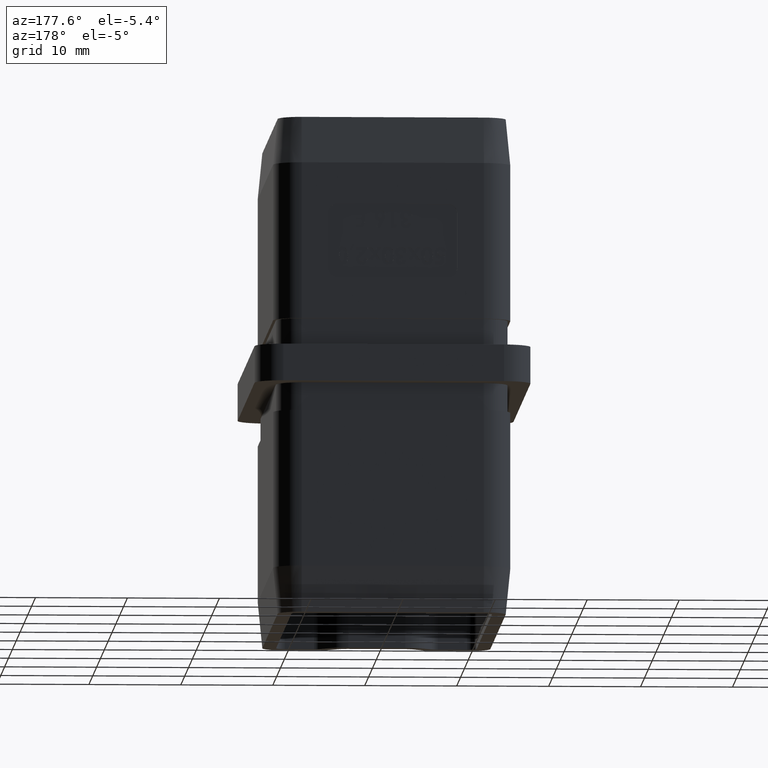
[diagram: clean part render]
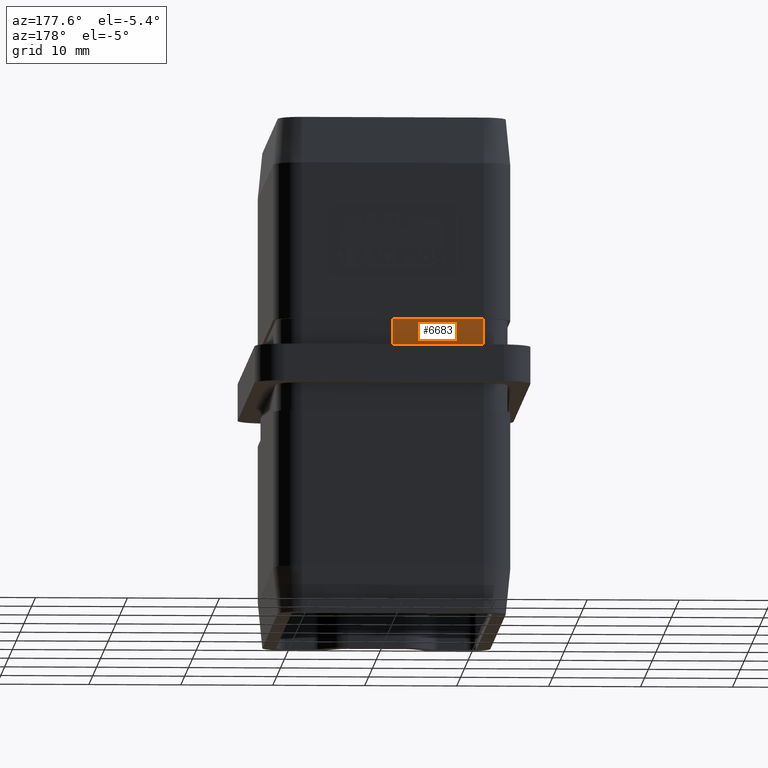
[diagram: same view with one face highlighted and labeled with its STEP entity id]
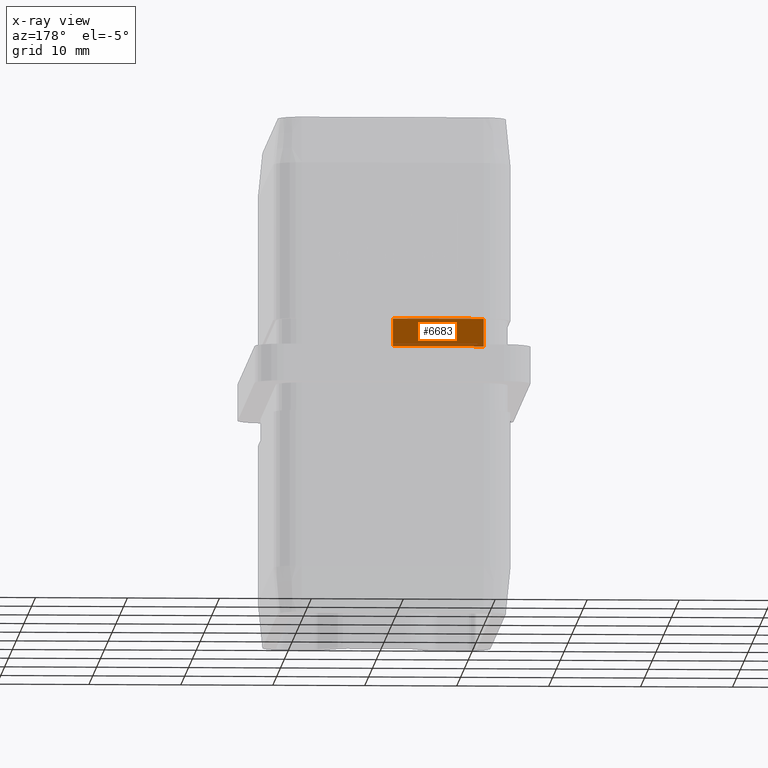
[diagram: x-ray of the same camera — body ghosted, the highlighted face saturated]
A machine part, auxiliary view. The second image highlights one B-rep face of the part: STEP entity #6683.
The next image is the same camera in x-ray: the body ghosted, the highlighted face saturated — about 0% of this face is hidden behind the body in this view.
In plain terms, the highlighted planar face has unit normal (0, -1, 0).
Its self-contained STEP definition (entity closure, byte-faithful):
#137 = FACE_OUTER_BOUND ( 'NONE', #10841, .T. ) ;
#208 = EDGE_CURVE ( 'NONE', #20409, #3533, #11685, .T. ) ;
#1108 = LINE ( 'NONE', #24747, #21232 ) ;
#1626 = DIRECTION ( 'NONE',  ( 1.000000000000000000, 0.0000000000000000000, 0.0000000000000000000 ) ) ;
#2355 = DIRECTION ( 'NONE',  ( 0.0000000000000000000, -0.0000000000000000000, -1.000000000000000000 ) ) ;
#3533 = VERTEX_POINT ( 'NONE', #5070 ) ;
#4175 = PLANE ( 'NONE',  #5056 ) ;
#4182 = VECTOR ( 'NONE', #14955, 1000.000000000000000 ) ;
#4784 = CARTESIAN_POINT ( 'NONE',  ( 0.0000000000000000000, 22.60000000000000100, 5.000000000000000000 ) ) ;
#5056 = AXIS2_PLACEMENT_3D ( 'NONE', #18801, #20883, #2355 ) ;
#5070 = CARTESIAN_POINT ( 'NONE',  ( -9.899999999999991500, 22.59999999999999400, 2.000000000000000000 ) ) ;
#5838 = DIRECTION ( 'NONE',  ( 1.000000000000000000, 0.0000000000000000000, 0.0000000000000000000 ) ) ;
#6683 = ADVANCED_FACE ( 'NONE', ( #137 ), #4175, .F. ) ;
#7240 = VECTOR ( 'NONE', #5838, 1000.000000000000000 ) ;
#7856 = CARTESIAN_POINT ( 'NONE',  ( -9.899999999999991500, 22.59999999999999400, 2.000000000000000000 ) ) ;
#8047 = CARTESIAN_POINT ( 'NONE',  ( 0.0000000000000000000, 22.60000000000000100, 5.000000000000000000 ) ) ;
#8384 = EDGE_CURVE ( 'NONE', #3533, #18094, #22502, .T. ) ;
#9459 = ORIENTED_EDGE ( 'NONE', *, *, #208, .F. ) ;
#10422 = CARTESIAN_POINT ( 'NONE',  ( 0.0000000000000000000, 22.59999999999999400, 3.000000000000000000 ) ) ;
#10713 = CARTESIAN_POINT ( 'NONE',  ( -9.899999999999991500, 22.59999999999999400, 5.000000000000000000 ) ) ;
#10841 = EDGE_LOOP ( 'NONE', ( #9459, #18982, #25755, #21977 ) ) ;
#11685 = LINE ( 'NONE', #10713, #4182 ) ;
#13881 = CARTESIAN_POINT ( 'NONE',  ( 0.0000000000000000000, 22.59999999999999400, 4.000000000000000000 ) ) ;
#14320 = CARTESIAN_POINT ( 'NONE',  ( 0.0000000000000000000, 22.59999999999999400, 2.000000000000000000 ) ) ;
#14955 = DIRECTION ( 'NONE',  ( 0.0000000000000000000, 0.0000000000000000000, -1.000000000000000000 ) ) ;
#16400 = B_SPLINE_CURVE_WITH_KNOTS ( 'NONE', 3,
 ( #8047, #13881, #10422, #14320 ),
 .UNSPECIFIED., .F., .F.,
 ( 4, 4 ),
 ( 0.0000000000000000000, 1.000000000000000000 ),
 .UNSPECIFIED. ) ;
#17975 = EDGE_CURVE ( 'NONE', #24268, #18094, #16400, .T. ) ;
#18094 = VERTEX_POINT ( 'NONE', #25363 ) ;
#18117 = CARTESIAN_POINT ( 'NONE',  ( -9.899999999999991500, 22.59999999999999400, 5.000000000000000000 ) ) ;
#18801 = CARTESIAN_POINT ( 'NONE',  ( -9.899999999999991500, 22.59999999999999400, 5.000000000000000000 ) ) ;
#18982 = ORIENTED_EDGE ( 'NONE', *, *, #20872, .T. ) ;
#20409 = VERTEX_POINT ( 'NONE', #18117 ) ;
#20872 = EDGE_CURVE ( 'NONE', #20409, #24268, #1108, .T. ) ;
#20883 = DIRECTION ( 'NONE',  ( 0.0000000000000000000, -1.000000000000000000, 0.0000000000000000000 ) ) ;
#21232 = VECTOR ( 'NONE', #1626, 1000.000000000000000 ) ;
#21977 = ORIENTED_EDGE ( 'NONE', *, *, #8384, .F. ) ;
#22502 = LINE ( 'NONE', #7856, #7240 ) ;
#24268 = VERTEX_POINT ( 'NONE', #4784 ) ;
#24747 = CARTESIAN_POINT ( 'NONE',  ( -9.899999999999991500, 22.59999999999999400, 5.000000000000000000 ) ) ;
#25363 = CARTESIAN_POINT ( 'NONE',  ( 0.0000000000000000000, 22.59999999999999400, 2.000000000000000000 ) ) ;
#25755 = ORIENTED_EDGE ( 'NONE', *, *, #17975, .T. ) ;